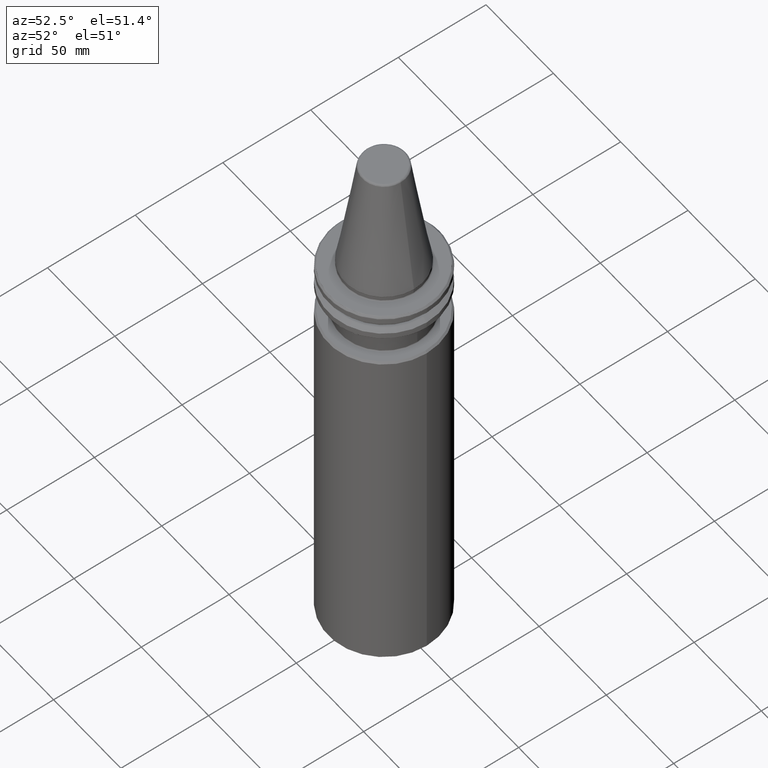
[diagram: clean part render]
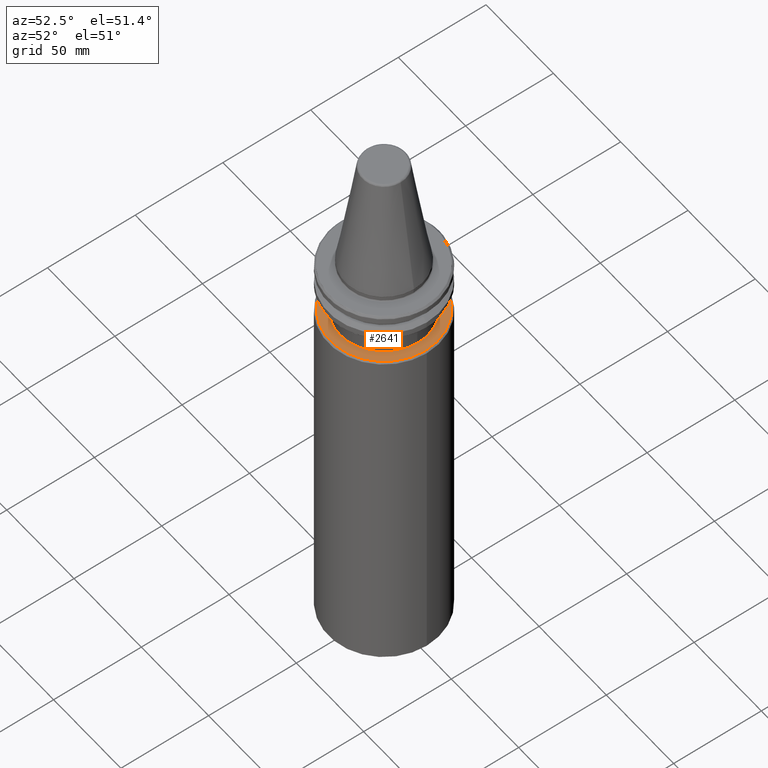
[diagram: same view with one face highlighted and labeled with its STEP entity id]
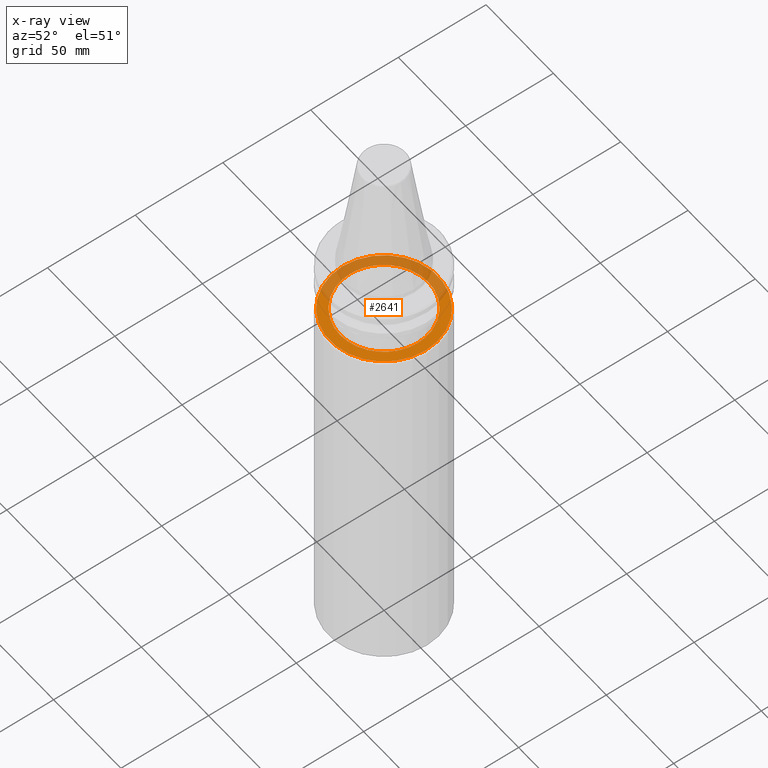
[diagram: x-ray of the same camera — body ghosted, the highlighted face saturated]
A machine part, auxiliary view. The second image highlights one B-rep face of the part: STEP entity #2641.
The next image is the same camera in x-ray: the body ghosted, the highlighted face saturated — about 42% of this face is hidden behind the body in this view.
In plain terms, the highlighted planar face has unit normal (0, 0, -1).
Its self-contained STEP definition (entity closure, byte-faithful):
#16 = AXIS2_PLACEMENT_3D ( 'NONE', #177, #125, #117 ) ;
#44 = CARTESIAN_POINT ( 'NONE',  ( -25.14999999999999900, 3.235770800694801400E-015, -36.00000000000000700 ) ) ;
#117 = DIRECTION ( 'NONE',  ( -1.000000000000000000, 0.0000000000000000000, -0.0000000000000000000 ) ) ;
#125 = DIRECTION ( 'NONE',  ( 0.0000000000000000000, 0.0000000000000000000, -1.000000000000000000 ) ) ;
#129 = CARTESIAN_POINT ( 'NONE',  ( 0.0000000000000000000, 0.0000000000000000000, -36.00000000000000700 ) ) ;
#131 = PLANE ( 'NONE',  #16 ) ;
#177 = CARTESIAN_POINT ( 'NONE',  ( 0.0000000000000000000, 25.15000000000000200, -36.00000000000001400 ) ) ;
#215 =( BOUNDED_CURVE ( )  B_SPLINE_CURVE ( 3, ( #1155, #1143, #1103, #1073 ),
 .UNSPECIFIED., .F., .T. ) 
 B_SPLINE_CURVE_WITH_KNOTS ( ( 4, 4 ),
 ( 0.0000000000000000000, 1.000000000000000000 ),
 .UNSPECIFIED. ) 
 CURVE ( )  GEOMETRIC_REPRESENTATION_ITEM ( )  RATIONAL_B_SPLINE_CURVE ( ( 1.000000000000000000, 0.3333333333333333700, 0.3333333333333333700, 1.000000000000000000 ) ) 
 REPRESENTATION_ITEM ( '' )  );
#402 = EDGE_CURVE ( 'NONE', #1721, #1554, #2072, .T. ) ;
#680 = FACE_BOUND ( 'NONE', #2758, .T. ) ;
#958 = EDGE_LOOP ( 'NONE', ( #1955, #2595 ) ) ;
#1067 =( BOUNDED_CURVE ( )  B_SPLINE_CURVE ( 3, ( #2403, #2413, #2384, #2429 ),
 .UNSPECIFIED., .F., .T. ) 
 B_SPLINE_CURVE_WITH_KNOTS ( ( 4, 4 ),
 ( 0.0000000000000000000, 1.000000000000000000 ),
 .UNSPECIFIED. ) 
 CURVE ( )  GEOMETRIC_REPRESENTATION_ITEM ( )  RATIONAL_B_SPLINE_CURVE ( ( 1.000000000000000000, 0.3333333333333333700, 0.3333333333333333700, 1.000000000000000000 ) ) 
 REPRESENTATION_ITEM ( '' )  );
#1073 = CARTESIAN_POINT ( 'NONE',  ( 25.14999999999999900, 0.0000000000000000000, -36.00000000000000700 ) ) ;
#1095 = EDGE_CURVE ( 'NONE', #2053, #3345, #1067, .T. ) ;
#1103 = CARTESIAN_POINT ( 'NONE',  ( 25.15000000000000200, -50.30000000000000400, -36.00000000000000000 ) ) ;
#1143 = CARTESIAN_POINT ( 'NONE',  ( -25.15000000000001300, -50.30000000000000400, -36.00000000000000000 ) ) ;
#1155 = CARTESIAN_POINT ( 'NONE',  ( -25.14999999999999900, 3.235770800694801400E-015, -36.00000000000000700 ) ) ;
#1213 = EDGE_CURVE ( 'NONE', #1554, #1721, #3171, .T. ) ;
#1294 = ORIENTED_EDGE ( 'NONE', *, *, #1776, .F. ) ;
#1309 = AXIS2_PLACEMENT_3D ( 'NONE', #2171, #2734, #2747 ) ;
#1554 = VERTEX_POINT ( 'NONE', #2863 ) ;
#1721 = VERTEX_POINT ( 'NONE', #2139 ) ;
#1776 = EDGE_CURVE ( 'NONE', #3345, #2053, #215, .T. ) ;
#1955 = ORIENTED_EDGE ( 'NONE', *, *, #402, .F. ) ;
#2053 = VERTEX_POINT ( 'NONE', #3292 ) ;
#2072 = CIRCLE ( 'NONE', #3134, 30.75000000000000000 ) ;
#2139 = CARTESIAN_POINT ( 'NONE',  ( -30.75000000000000000, 0.0000000000000000000, -36.00000000000000700 ) ) ;
#2171 = CARTESIAN_POINT ( 'NONE',  ( 0.0000000000000000000, 0.0000000000000000000, -36.00000000000000700 ) ) ;
#2384 = CARTESIAN_POINT ( 'NONE',  ( -25.14999999999999500, 50.30000000000000400, -36.00000000000000000 ) ) ;
#2403 = CARTESIAN_POINT ( 'NONE',  ( 25.14999999999999900, 0.0000000000000000000, -36.00000000000000700 ) ) ;
#2413 = CARTESIAN_POINT ( 'NONE',  ( 25.15000000000000200, 50.30000000000000400, -36.00000000000000000 ) ) ;
#2429 = CARTESIAN_POINT ( 'NONE',  ( -25.14999999999999900, 3.235770800694801400E-015, -36.00000000000000700 ) ) ;
#2595 = ORIENTED_EDGE ( 'NONE', *, *, #1213, .F. ) ;
#2641 = ADVANCED_FACE ( 'NONE', ( #3270, #680 ), #131, .F. ) ;
#2734 = DIRECTION ( 'NONE',  ( 0.0000000000000000000, 0.0000000000000000000, -1.000000000000000000 ) ) ;
#2747 = DIRECTION ( 'NONE',  ( -1.000000000000000000, 0.0000000000000000000, 0.0000000000000000000 ) ) ;
#2758 = EDGE_LOOP ( 'NONE', ( #1294, #3350 ) ) ;
#2863 = CARTESIAN_POINT ( 'NONE',  ( 30.75000000000000000, 3.827021247335478900E-015, -36.00000000000000700 ) ) ;
#3072 = DIRECTION ( 'NONE',  ( -1.000000000000000000, 0.0000000000000000000, 0.0000000000000000000 ) ) ;
#3134 = AXIS2_PLACEMENT_3D ( 'NONE', #129, #3143, #3072 ) ;
#3143 = DIRECTION ( 'NONE',  ( 0.0000000000000000000, 0.0000000000000000000, -1.000000000000000000 ) ) ;
#3171 = CIRCLE ( 'NONE', #1309, 30.75000000000000000 ) ;
#3270 = FACE_OUTER_BOUND ( 'NONE', #958, .T. ) ;
#3292 = CARTESIAN_POINT ( 'NONE',  ( 25.14999999999999900, 0.0000000000000000000, -36.00000000000000700 ) ) ;
#3345 = VERTEX_POINT ( 'NONE', #44 ) ;
#3350 = ORIENTED_EDGE ( 'NONE', *, *, #1095, .F. ) ;